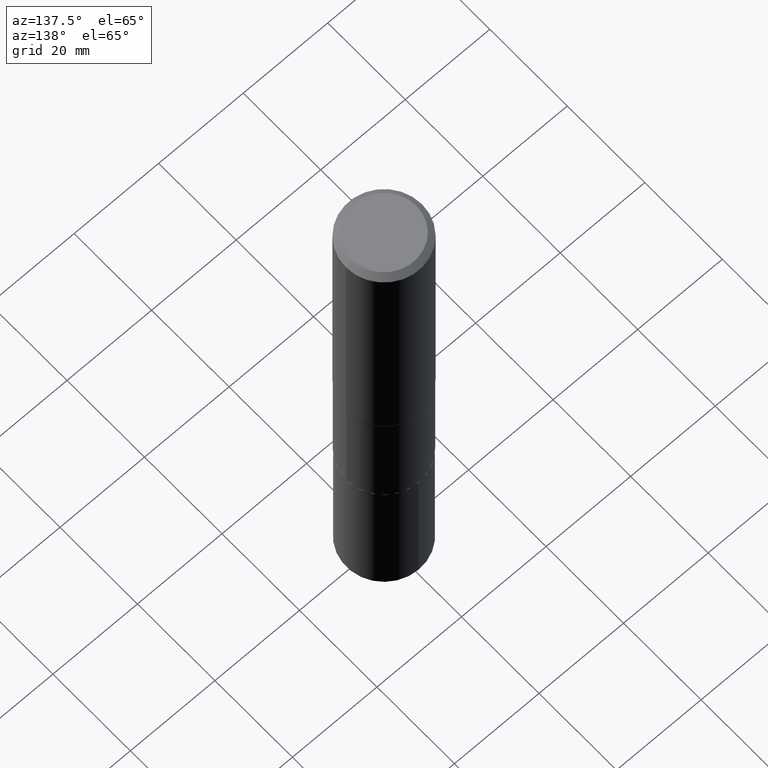
[diagram: clean part render]
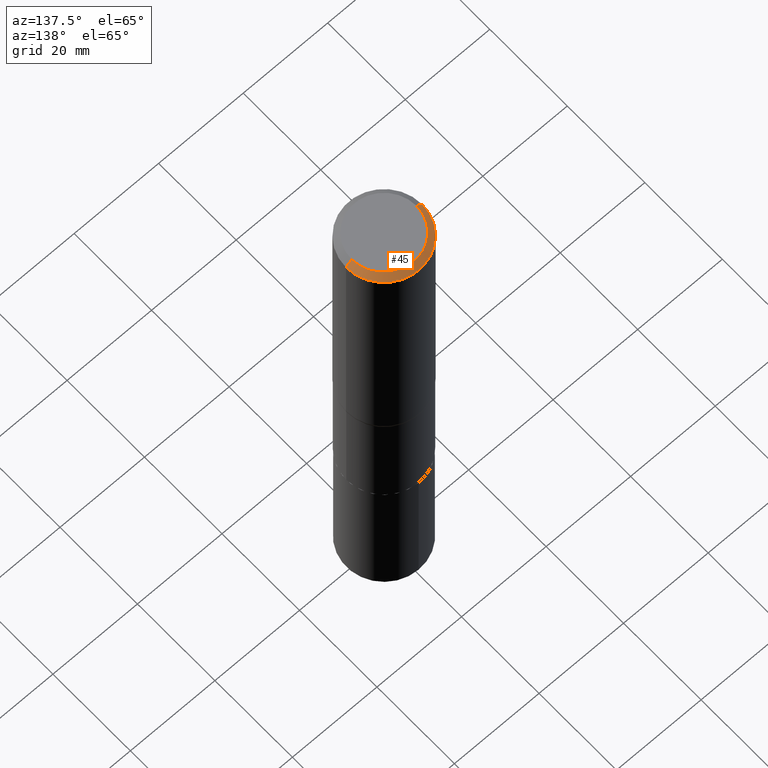
[diagram: same view with one face highlighted and labeled with its STEP entity id]
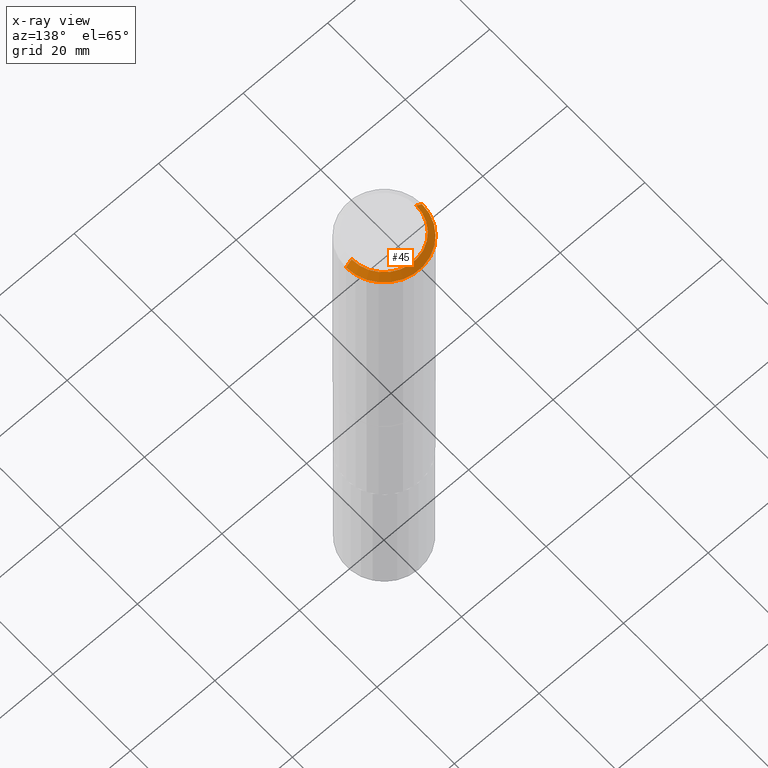
[diagram: x-ray of the same camera — body ghosted, the highlighted face saturated]
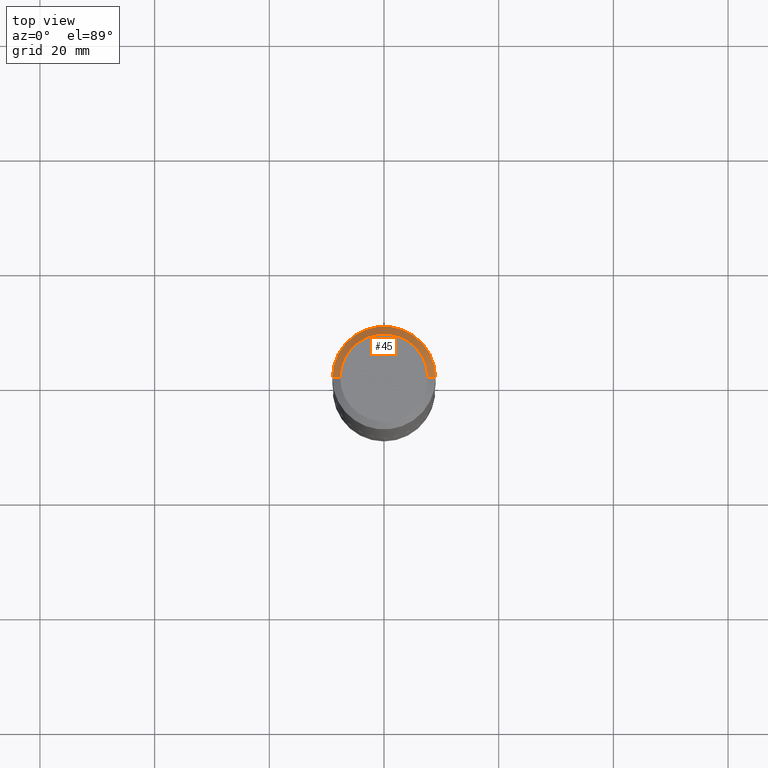
[diagram: same view with one face highlighted and labeled with its STEP entity id]
A machine part, auxiliary view. The second image highlights one B-rep face of the part: STEP entity #45.
The next image is the same camera in x-ray: the body ghosted, the highlighted face saturated — about 0% of this face is hidden behind the body in this view.
A second angle (top view) of the same face is appended — the face is thin or edge-on in the first view.
In plain terms, the highlighted conical surface has half-angle 45 deg.
Its self-contained STEP definition (entity closure, byte-faithful):
#45 = ADVANCED_FACE ( 'NONE', ( #46 ), #117, .T. ) ;
#46 = FACE_OUTER_BOUND ( 'NONE', #71, .T. ) ;
#53 = DIRECTION ( 'NONE',  ( 1.000000000000000000, -6.982962677686266711E-15, 4.876239486148337140E-29 ) ) ;
#71 = EDGE_LOOP ( 'NONE', ( #141, #316, #180, #211 ) ) ;
#83 = CARTESIAN_POINT ( 'NONE',  ( 1.299827807207562971E-30, -1.855809618628614763E-16, -0.05315250000000033143 ) ) ;
#100 = CARTESIAN_POINT ( 'NONE',  ( 1.299827807207562971E-30, -1.855809618628614763E-16, -0.05315250000000033143 ) ) ;
#103 = CIRCLE ( 'NONE', #425, 0.3543499999999999983 ) ;
#117 = CONICAL_SURFACE ( 'NONE', #376, 0.3543499999999999983, 0.7853981633974452814 ) ;
#118 = DIRECTION ( 'NONE',  ( 2.445468806185136597E-29, -3.491481338843145583E-15, -1.000000000000000000 ) ) ;
#120 = VERTEX_POINT ( 'NONE', #412 ) ;
#131 = VECTOR ( 'NONE', #140, 39.37007874015748143 ) ;
#134 = EDGE_CURVE ( 'NONE', #120, #466, #161, .T. ) ;
#140 = DIRECTION ( 'NONE',  ( 0.7071067811865453523, -7.319954787623248157E-15, -0.7071067811865496822 ) ) ;
#141 = ORIENTED_EDGE ( 'NONE', *, *, #176, .F. ) ;
#144 = VERTEX_POINT ( 'NONE', #414 ) ;
#156 = DIRECTION ( 'NONE',  ( -1.000000000000000000, 6.982962677686266711E-15, 0.000000000000000000 ) ) ;
#161 = LINE ( 'NONE', #237, #345 ) ;
#165 = CARTESIAN_POINT ( 'NONE',  ( -1.002970424325033577E-46, 1.431975951230896212E-32, 4.101342130344485961E-18 ) ) ;
#167 = LINE ( 'NONE', #351, #131 ) ;
#176 = EDGE_CURVE ( 'NONE', #144, #120, #310, .T. ) ;
#180 = ORIENTED_EDGE ( 'NONE', *, *, #377, .T. ) ;
#187 = CARTESIAN_POINT ( 'NONE',  ( -0.3543499999999999983, -1.745242539335107473E-15, -0.05315250000000033143 ) ) ;
#190 = AXIS2_PLACEMENT_3D ( 'NONE', #165, #410, #53 ) ;
#211 = ORIENTED_EDGE ( 'NONE', *, *, #134, .F. ) ;
#237 = CARTESIAN_POINT ( 'NONE',  ( -0.3543499999999999983, 2.288831862975267218E-15, -0.05315250000000033143 ) ) ;
#310 = CIRCLE ( 'NONE', #190, 0.3011975000000000069 ) ;
#312 = DIRECTION ( 'NONE',  ( -2.445468806185136597E-29, 3.491481338843145583E-15, 1.000000000000000000 ) ) ;
#316 = ORIENTED_EDGE ( 'NONE', *, *, #415, .T. ) ;
#344 = CARTESIAN_POINT ( 'NONE',  ( 0.3543499999999999983, -2.659993786700990170E-15, -0.05315250000000033143 ) ) ;
#345 = VECTOR ( 'NONE', #374, 39.37007874015748143 ) ;
#351 = CARTESIAN_POINT ( 'NONE',  ( 0.3543499999999999983, -2.616598427373203868E-15, -0.05315250000000033143 ) ) ;
#374 = DIRECTION ( 'NONE',  ( -0.7071067811865453523, 2.468850131082234184E-15, -0.7071067811865496822 ) ) ;
#376 = AXIS2_PLACEMENT_3D ( 'NONE', #83, #118, #156 ) ;
#377 = EDGE_CURVE ( 'NONE', #389, #466, #103, .T. ) ;
#389 = VERTEX_POINT ( 'NONE', #344 ) ;
#410 = DIRECTION ( 'NONE',  ( -2.445468806185136597E-29, 3.491481338843145583E-15, 1.000000000000000000 ) ) ;
#412 = CARTESIAN_POINT ( 'NONE',  ( -0.3011975000000000069, 2.196041382043838255E-15, 4.101342130329452923E-18 ) ) ;
#414 = CARTESIAN_POINT ( 'NONE',  ( 0.3011975000000000069, -2.341481636528497322E-15, 4.101342130360026675E-18 ) ) ;
#415 = EDGE_CURVE ( 'NONE', #144, #389, #167, .T. ) ;
#425 = AXIS2_PLACEMENT_3D ( 'NONE', #100, #312, #459 ) ;
#459 = DIRECTION ( 'NONE',  ( 1.000000000000000000, -6.982962677686266711E-15, 0.000000000000000000 ) ) ;
#466 = VERTEX_POINT ( 'NONE', #187 ) ;